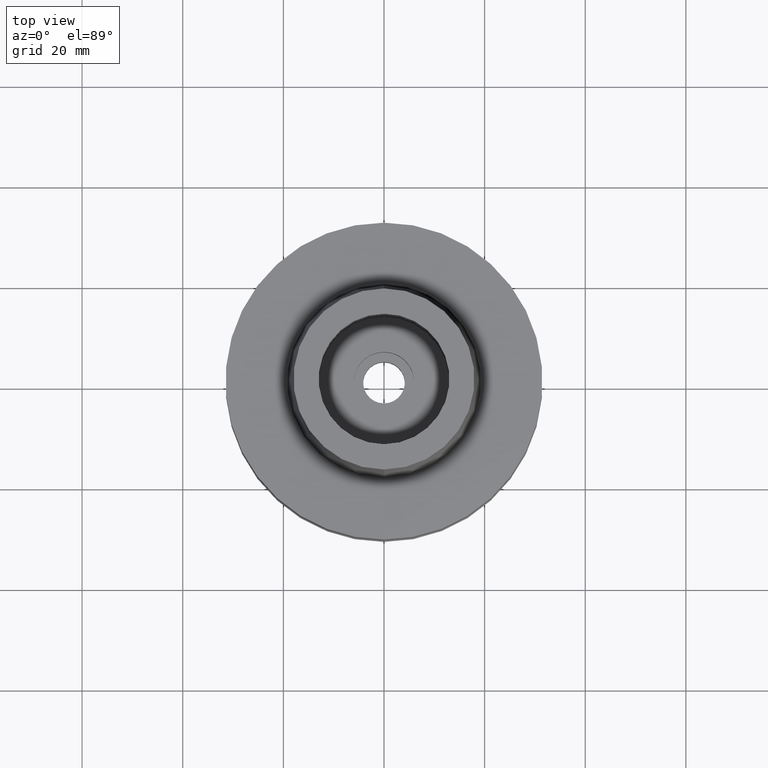
[diagram: clean part render]
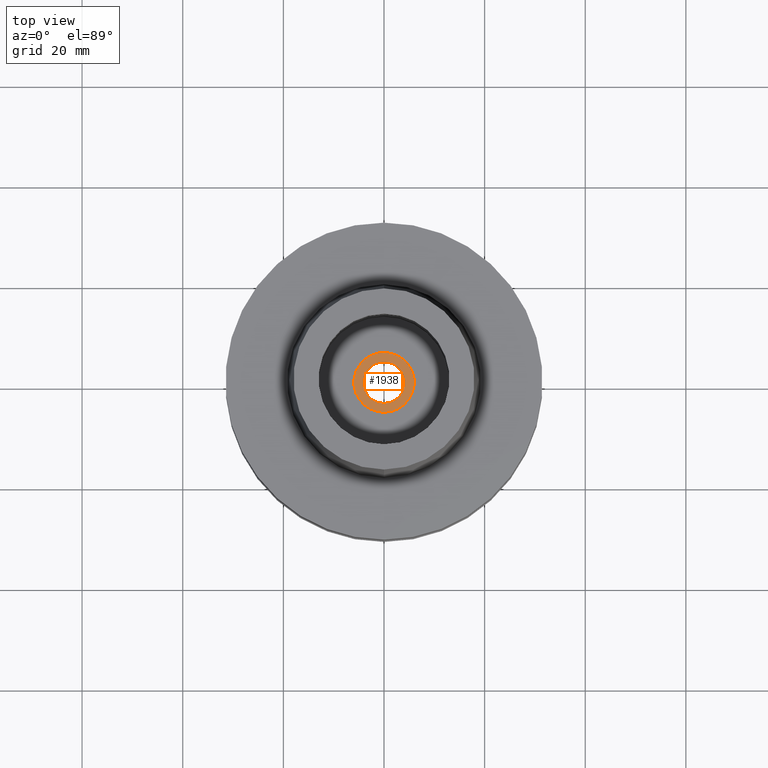
[diagram: same view with one face highlighted and labeled with its STEP entity id]
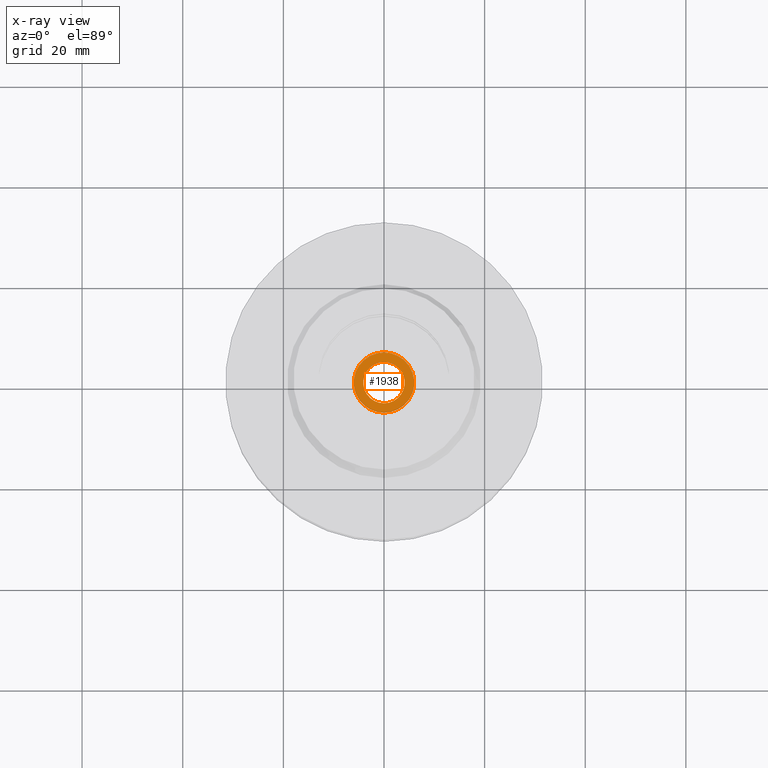
[diagram: x-ray of the same camera — body ghosted, the highlighted face saturated]
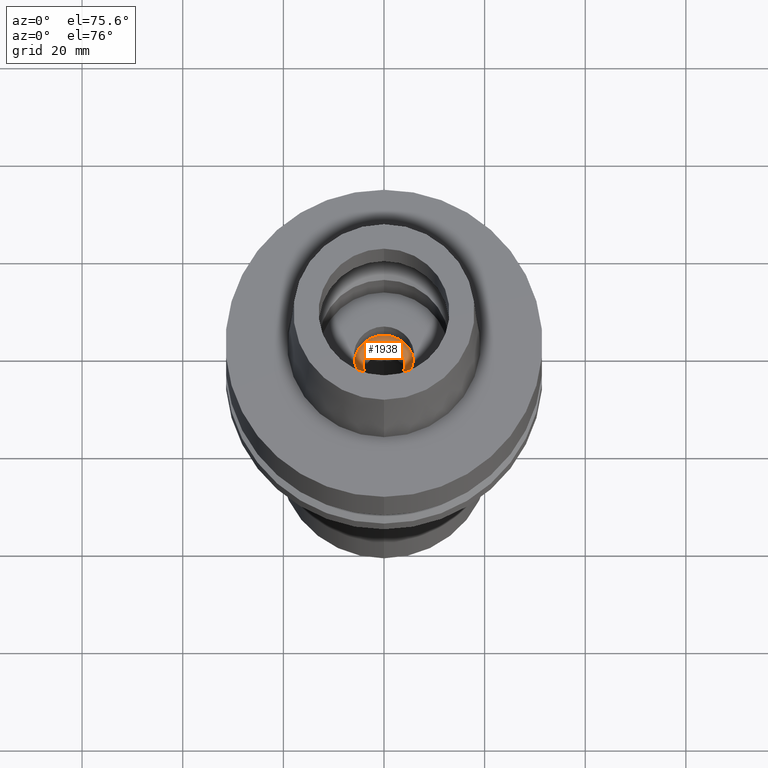
[diagram: same view with one face highlighted and labeled with its STEP entity id]
A machine part, top view. The second image highlights one B-rep face of the part: STEP entity #1938.
The next image is the same camera in x-ray: the body ghosted, the highlighted face saturated — about 0% of this face is hidden behind the body in this view.
A second angle (auxiliary view) of the same face is appended — the face is thin or edge-on in the first view.
In plain terms, the highlighted planar face has unit normal (0, 0, 1).
Its self-contained STEP definition (entity closure, byte-faithful):
#103 = VERTEX_POINT ( 'NONE', #1700 ) ;
#128 = CARTESIAN_POINT ( 'NONE',  ( 0.0000000000000000000, -6.000000000000000000, -16.94999999999999929 ) ) ;
#146 = FACE_OUTER_BOUND ( 'NONE', #2650, .T. ) ;
#210 = VERTEX_POINT ( 'NONE', #2600 ) ;
#243 = VERTEX_POINT ( 'NONE', #577 ) ;
#258 = DIRECTION ( 'NONE',  ( 0.0000000000000000000, 0.0000000000000000000, -1.000000000000000000 ) ) ;
#284 = DIRECTION ( 'NONE',  ( 0.0000000000000000000, 0.0000000000000000000, 1.000000000000000000 ) ) ;
#364 = DIRECTION ( 'NONE',  ( 0.0000000000000000000, 0.0000000000000000000, -1.000000000000000000 ) ) ;
#486 = CARTESIAN_POINT ( 'NONE',  ( 0.0000000000000000000, 0.0000000000000000000, -16.94999999999999929 ) ) ;
#502 = DIRECTION ( 'NONE',  ( 0.0000000000000000000, 0.0000000000000000000, 1.000000000000000000 ) ) ;
#577 = CARTESIAN_POINT ( 'NONE',  ( 0.0000000000000000000, -4.125000000000000000, -16.94999999999999929 ) ) ;
#613 = DIRECTION ( 'NONE',  ( 0.0000000000000000000, 0.0000000000000000000, 1.000000000000000000 ) ) ;
#627 = EDGE_CURVE ( 'NONE', #243, #103, #1799, .T. ) ;
#692 = CARTESIAN_POINT ( 'NONE',  ( 0.0000000000000000000, 0.0000000000000000000, -16.94999999999999929 ) ) ;
#784 = ORIENTED_EDGE ( 'NONE', *, *, #2229, .F. ) ;
#821 = AXIS2_PLACEMENT_3D ( 'NONE', #1902, #364, #2842 ) ;
#1024 = CARTESIAN_POINT ( 'NONE',  ( 0.0000000000000000000, 0.0000000000000000000, -16.94999999999999929 ) ) ;
#1108 = ORIENTED_EDGE ( 'NONE', *, *, #627, .F. ) ;
#1127 = ORIENTED_EDGE ( 'NONE', *, *, #1985, .F. ) ;
#1195 = AXIS2_PLACEMENT_3D ( 'NONE', #1208, #284, #2719 ) ;
#1208 = CARTESIAN_POINT ( 'NONE',  ( 0.0000000000000000000, 0.0000000000000000000, -16.94999999999999929 ) ) ;
#1279 = AXIS2_PLACEMENT_3D ( 'NONE', #692, #502, #2100 ) ;
#1467 = FACE_BOUND ( 'NONE', #2450, .T. ) ;
#1627 = ORIENTED_EDGE ( 'NONE', *, *, #1829, .F. ) ;
#1649 = CIRCLE ( 'NONE', #2032, 6.000000000000000000 ) ;
#1700 = CARTESIAN_POINT ( 'NONE',  ( 0.0000000000000000000, 4.125000000000000000, -16.94999999999999929 ) ) ;
#1795 = CIRCLE ( 'NONE', #821, 6.000000000000000000 ) ;
#1799 = CIRCLE ( 'NONE', #1195, 4.125000000000000000 ) ;
#1829 = EDGE_CURVE ( 'NONE', #103, #243, #1837, .T. ) ;
#1837 = CIRCLE ( 'NONE', #1279, 4.125000000000000000 ) ;
#1902 = CARTESIAN_POINT ( 'NONE',  ( 0.0000000000000000000, 0.0000000000000000000, -16.94999999999999929 ) ) ;
#1938 = ADVANCED_FACE ( 'NONE', ( #146, #1467 ), #2783, .T. ) ;
#1960 = VERTEX_POINT ( 'NONE', #128 ) ;
#1968 = DIRECTION ( 'NONE',  ( 0.0000000000000000000, -1.000000000000000000, 0.0000000000000000000 ) ) ;
#1985 = EDGE_CURVE ( 'NONE', #210, #1960, #1795, .T. ) ;
#2032 = AXIS2_PLACEMENT_3D ( 'NONE', #486, #258, #1968 ) ;
#2100 = DIRECTION ( 'NONE',  ( 0.0000000000000000000, 1.000000000000000000, 0.0000000000000000000 ) ) ;
#2229 = EDGE_CURVE ( 'NONE', #1960, #210, #1649, .T. ) ;
#2354 = AXIS2_PLACEMENT_3D ( 'NONE', #1024, #613, #2795 ) ;
#2450 = EDGE_LOOP ( 'NONE', ( #1627, #1108 ) ) ;
#2600 = CARTESIAN_POINT ( 'NONE',  ( 0.0000000000000000000, 6.000000000000000000, -16.94999999999999929 ) ) ;
#2650 = EDGE_LOOP ( 'NONE', ( #1127, #784 ) ) ;
#2719 = DIRECTION ( 'NONE',  ( 0.0000000000000000000, -1.000000000000000000, 0.0000000000000000000 ) ) ;
#2783 = PLANE ( 'NONE',  #2354 ) ;
#2795 = DIRECTION ( 'NONE',  ( 1.000000000000000000, 0.0000000000000000000, 0.0000000000000000000 ) ) ;
#2842 = DIRECTION ( 'NONE',  ( 0.0000000000000000000, 1.000000000000000000, 0.0000000000000000000 ) ) ;